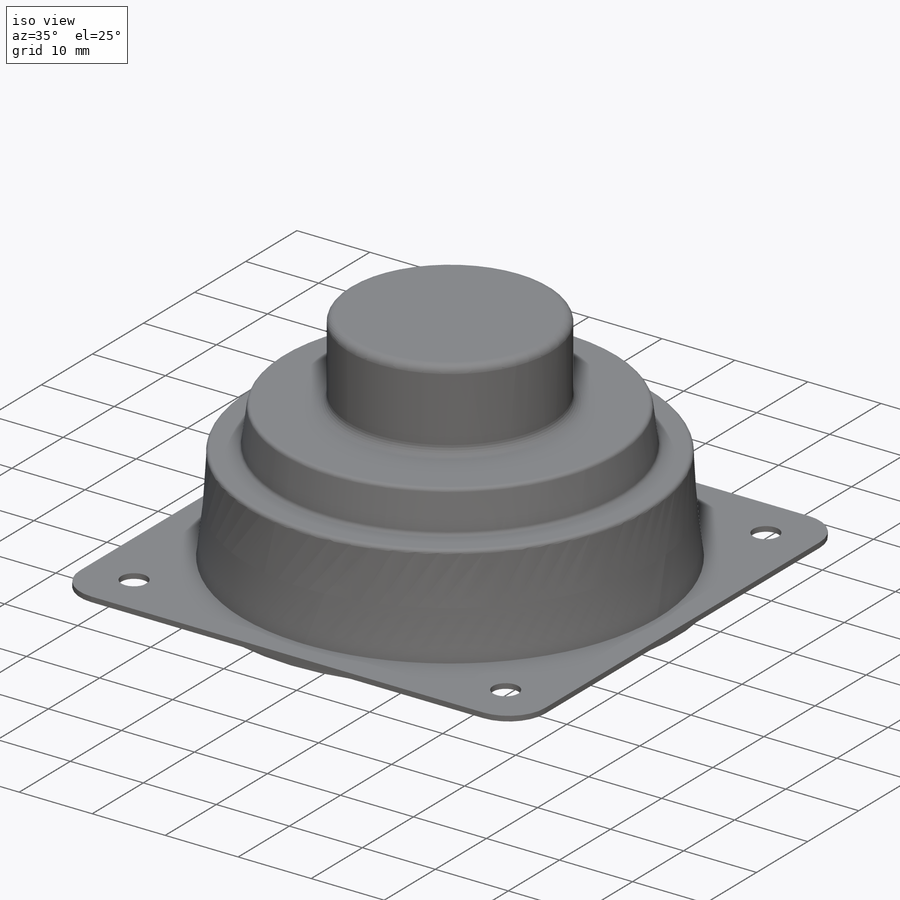
[diagram: iso view]
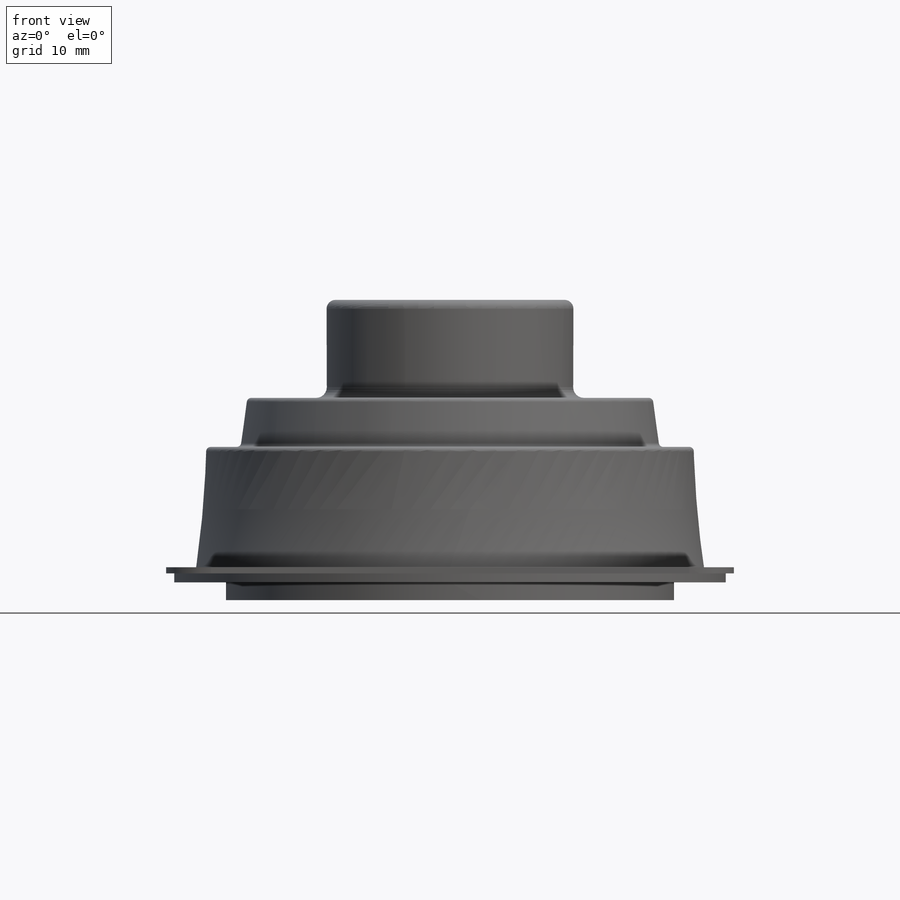
[diagram: front view]
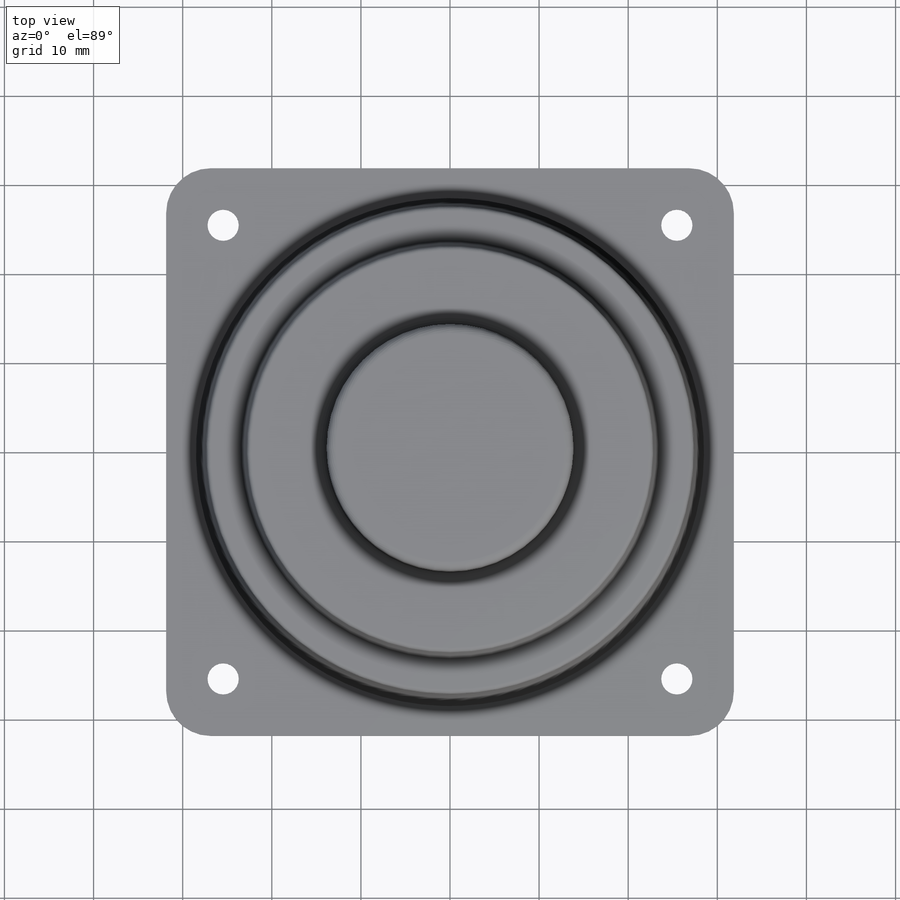
[diagram: top view]
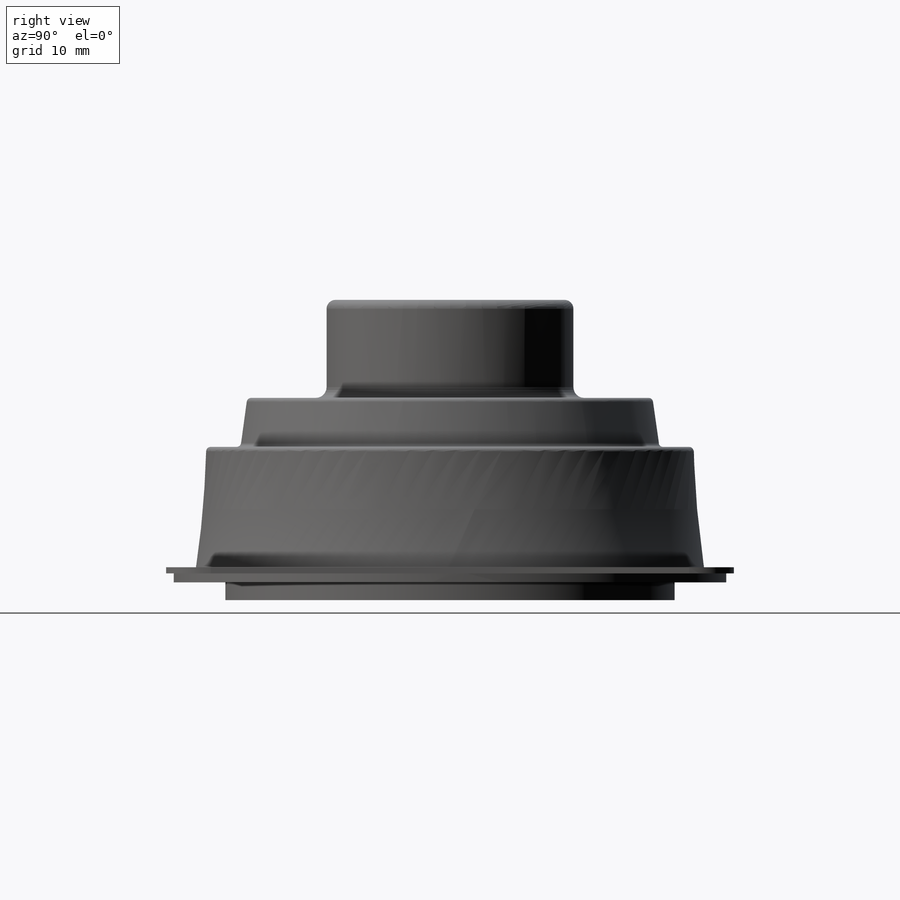
[diagram: right view]
SOLIDWORKS PART (.sldprt)
format: sldprt  version: not decoded by parser v0  size: 363,008 bytes
history: native  units: mm
features: sketch x9, extrude x5, fillet x3, plane x2, material x1 (+12 scaffold rows collapsed)
feature tree (32):
  scaffold x12  (default folders/planes/origin — collapsed)
  material  "Material <not specified>"
  sketch  "Sketch1"  dims[D2=5.0mm D7=3.5mm D1=63.7mm D3=36.0mm D4=36.0mm D5=36.0mm D6=36.0mm]
  extrude  "Boss-Extrude1"  Depth=0.7mm
  sketch  "Sketch2"  dims[D1=62.0mm]
  extrude  "Boss-Extrude2"  Depth=1mm
  sketch  "Sketch3"  dims[D1=50.4mm]
  extrude  "Boss-Extrude3"  Depth=2mm
  sketch  "Sketch4"  dims[D1=57.0mm]
  plane  "Plane1"  Offset=14.2mm
  sketch  "Sketch5"  dims[D1=54.7mm]
  sketch  "Sketch6"  dims[D1=47.0mm]
  plane  "Plane2"  Offset=19.7mm
  sketch  "Sketch7"  dims[D1=45.5mm]
  extrude  "Loft2"  [1 undecoded]
  sketch  "Sketch8"  dims[D1=27.7mm]
  extrude  "Boss-Extrude4"  Depth=11mm
  fillet  "Fillet1"  Radius=1mm
  fillet  "Fillet2"  Radius=1.2mm
  fillet  "Fillet3"  Radius=0.5mm
  sketch  "Sketch11"  dims[D1=8.5mm]
decode coverage: 16 of 17 modeling features carry decoded parameters
note: 1 parameter value undecoded
note: suppression state not decoded; provenance and decode notes live in map.json
